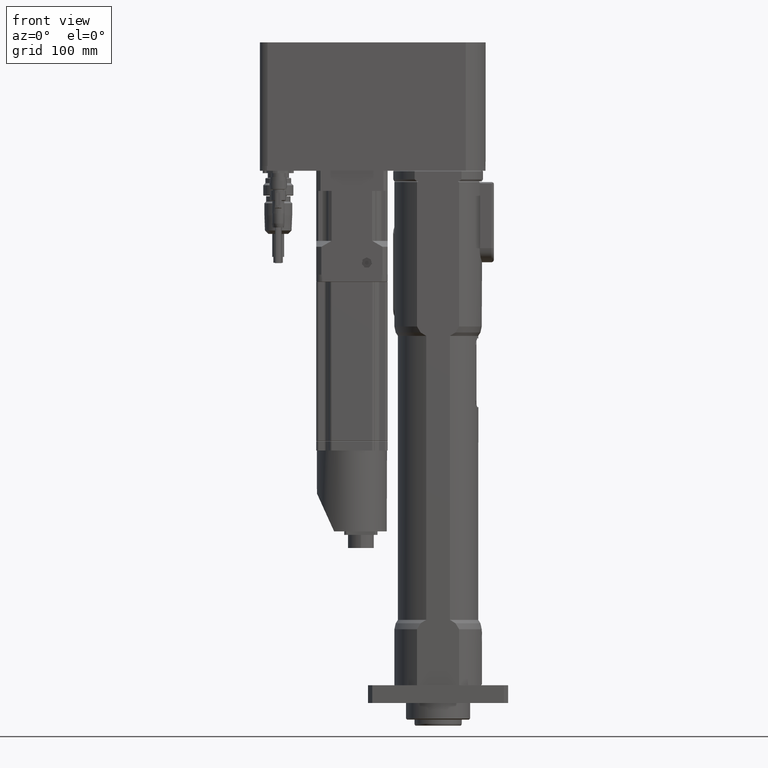
[diagram: clean part render]
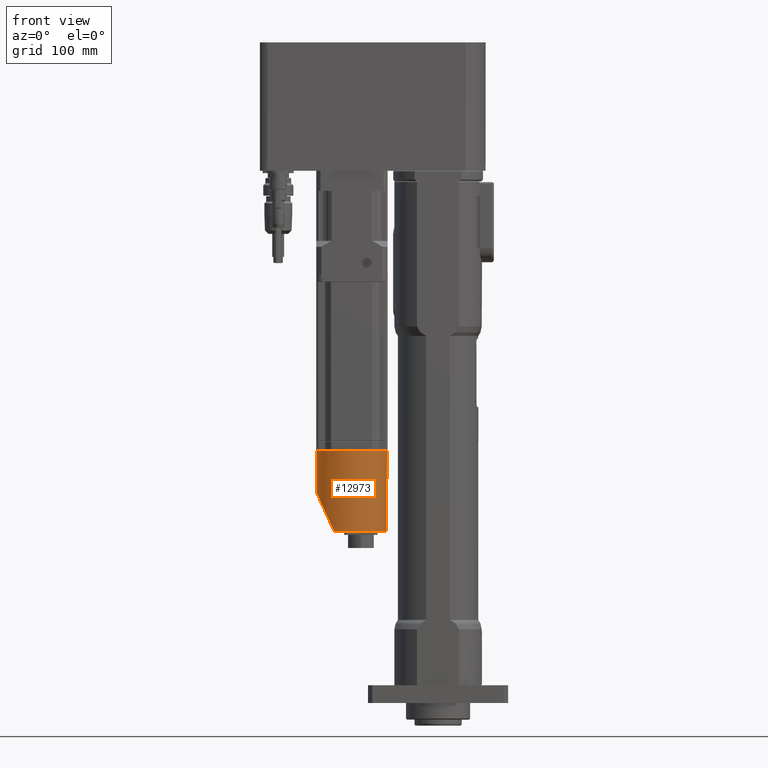
[diagram: same view with one face highlighted and labeled with its STEP entity id]
A machine part, front view. The second image highlights one B-rep face of the part: STEP entity #12973.
In plain terms, the highlighted cylindrical surface (bore or boss wall) has radius 29.5 mm, axis along (-0, -0, -1).
Its self-contained STEP definition (entity closure, byte-faithful):
#182=ELLIPSE('',#14003,71.4752333148192,29.5);
#2736=FACE_BOUND('',#3999,.T.);
#3128=FACE_OUTER_BOUND('',#3998,.T.);
#3998=EDGE_LOOP('',(#9447,#9448));
#3999=EDGE_LOOP('',(#9449,#9450,#9451,#9452,#9453,#9454,#9455,#9456));
#4816=CIRCLE('',#14005,29.5);
#4820=CIRCLE('',#14010,29.5);
#4822=CIRCLE('',#14013,29.5);
#4826=CIRCLE('',#14018,29.5);
#4832=CIRCLE('',#14025,29.5);
#4833=CIRCLE('',#14027,29.5);
#4834=CIRCLE('',#14028,29.5);
#4835=CIRCLE('',#14029,29.5);
#4836=CIRCLE('',#14030,29.5);
#5725=VERTEX_POINT('',#22938);
#5726=VERTEX_POINT('',#22939);
#5727=VERTEX_POINT('',#22945);
#5730=VERTEX_POINT('',#22950);
#5732=VERTEX_POINT('',#22955);
#5733=VERTEX_POINT('',#22957);
#5736=VERTEX_POINT('',#22964);
#5737=VERTEX_POINT('',#22966);
#5739=VERTEX_POINT('',#22972);
#5742=VERTEX_POINT('',#22977);
#7070=EDGE_CURVE('',#5725,#5726,#182,.T.);
#7072=EDGE_CURVE('',#5725,#5726,#4816,.T.);
#7076=EDGE_CURVE('',#5730,#5727,#4820,.T.);
#7078=EDGE_CURVE('',#5732,#5733,#4822,.T.);
#7082=EDGE_CURVE('',#5736,#5737,#4826,.T.);
#7088=EDGE_CURVE('',#5742,#5739,#4832,.T.);
#7089=EDGE_CURVE('',#5727,#5742,#4833,.T.);
#7090=EDGE_CURVE('',#5733,#5730,#4834,.T.);
#7091=EDGE_CURVE('',#5737,#5732,#4835,.T.);
#7092=EDGE_CURVE('',#5739,#5736,#4836,.T.);
#9447=ORIENTED_EDGE('',*,*,#7070,.T.);
#9448=ORIENTED_EDGE('',*,*,#7072,.F.);
#9449=ORIENTED_EDGE('',*,*,#7089,.F.);
#9450=ORIENTED_EDGE('',*,*,#7076,.F.);
#9451=ORIENTED_EDGE('',*,*,#7090,.F.);
#9452=ORIENTED_EDGE('',*,*,#7078,.F.);
#9453=ORIENTED_EDGE('',*,*,#7091,.F.);
#9454=ORIENTED_EDGE('',*,*,#7082,.F.);
#9455=ORIENTED_EDGE('',*,*,#7092,.F.);
#9456=ORIENTED_EDGE('',*,*,#7088,.F.);
#11743=CYLINDRICAL_SURFACE('',#14026,29.5);
#12973=ADVANCED_FACE('',(#3128,#2736),#11743,.T.);
#14003=AXIS2_PLACEMENT_3D('',#22940,#16314,#16315);
#14005=AXIS2_PLACEMENT_3D('',#22943,#16319,#16320);
#14010=AXIS2_PLACEMENT_3D('',#22952,#16329,#16330);
#14013=AXIS2_PLACEMENT_3D('',#22958,#16335,#16336);
#14018=AXIS2_PLACEMENT_3D('',#22967,#16345,#16346);
#14025=AXIS2_PLACEMENT_3D('',#22979,#16359,#16360);
#14026=AXIS2_PLACEMENT_3D('',#22980,#16361,#16362);
#14027=AXIS2_PLACEMENT_3D('',#22981,#16363,#16364);
#14028=AXIS2_PLACEMENT_3D('',#22982,#16365,#16366);
#14029=AXIS2_PLACEMENT_3D('',#22983,#16367,#16368);
#14030=AXIS2_PLACEMENT_3D('',#22984,#16369,#16370);
#16314=DIRECTION('center_axis',(0.910853246034301,3.7801971255199E-16,0.412730377109292));
#16315=DIRECTION('ref_axis',(0.412730377109292,1.7129018225012E-16,-0.910853246034301));
#16319=DIRECTION('center_axis',(-9.5486277816282E-16,-1.12787535060299E-31,
-1.));
#16320=DIRECTION('ref_axis',(-4.15017143758145E-16,1.,2.83496887813802E-31));
#16329=DIRECTION('center_axis',(9.5486277816282E-16,1.12787535060299E-31,
1.));
#16330=DIRECTION('ref_axis',(-4.15017143758145E-16,1.,2.83496887813802E-31));
#16335=DIRECTION('center_axis',(9.5486277816282E-16,1.12787535060299E-31,
1.));
#16336=DIRECTION('ref_axis',(-4.15017143758145E-16,1.,2.83496887813802E-31));
#16345=DIRECTION('center_axis',(9.5486277816282E-16,1.12787535060299E-31,
1.));
#16346=DIRECTION('ref_axis',(-4.15017143758145E-16,1.,2.83496887813802E-31));
#16359=DIRECTION('center_axis',(9.5486277816282E-16,1.12787535060299E-31,
1.));
#16360=DIRECTION('ref_axis',(-4.15017143758145E-16,1.,2.83496887813802E-31));
#16361=DIRECTION('center_axis',(-9.5486277816282E-16,-1.12787535060299E-31,
-1.));
#16362=DIRECTION('ref_axis',(-4.15017143758145E-16,1.,2.83496887813802E-31));
#16363=DIRECTION('center_axis',(9.5486277816282E-16,1.12787535060299E-31,
1.));
#16364=DIRECTION('ref_axis',(-4.15017143758145E-16,1.,2.83496887813802E-31));
#16365=DIRECTION('center_axis',(9.5486277816282E-16,1.12787535060299E-31,
1.));
#16366=DIRECTION('ref_axis',(-4.15017143758145E-16,1.,2.83496887813802E-31));
#16367=DIRECTION('center_axis',(9.5486277816282E-16,1.12787535060299E-31,
1.));
#16368=DIRECTION('ref_axis',(-4.15017143758145E-16,1.,2.83496887813802E-31));
#16369=DIRECTION('center_axis',(9.5486277816282E-16,1.12787535060299E-31,
1.));
#16370=DIRECTION('ref_axis',(-4.15017143758145E-16,1.,2.83496887813802E-31));
#22938=CARTESIAN_POINT('',(-87.4999999999998,25.4017715917611,158.500000000001));
#22939=CARTESIAN_POINT('',(-87.4999999999998,-25.401771591761,158.500000000001));
#22940=CARTESIAN_POINT('Origin',(-72.4999999999999,7.40384203082845E-14,
125.396551724139));
#22943=CARTESIAN_POINT('Origin',(-72.4999999999998,7.40384203082845E-14,
158.500000000001));
#22945=CARTESIAN_POINT('',(-91.6566690090806,-22.4337253365667,226.500000000001));
#22950=CARTESIAN_POINT('',(-94.9337253365666,-19.1566690090808,226.500000000001));
#22952=CARTESIAN_POINT('Origin',(-72.4999999999998,7.40384203082846E-14,
226.500000000001));
#22955=CARTESIAN_POINT('',(-91.6566690090807,22.4337253365669,226.500000000001));
#22957=CARTESIAN_POINT('',(-94.9337253365666,19.156669009081,226.500000000001));
#22958=CARTESIAN_POINT('Origin',(-72.4999999999998,7.40384203082846E-14,
226.500000000001));
#22964=CARTESIAN_POINT('',(-50.066274663433,19.156669009081,226.500000000001));
#22966=CARTESIAN_POINT('',(-53.3433309909189,22.4337253365669,226.500000000001));
#22967=CARTESIAN_POINT('Origin',(-72.4999999999998,7.40384203082846E-14,
226.500000000001));
#22972=CARTESIAN_POINT('',(-50.066274663433,-19.1566690090808,226.500000000001));
#22977=CARTESIAN_POINT('',(-53.3433309909189,-22.4337253365667,226.500000000001));
#22979=CARTESIAN_POINT('Origin',(-72.4999999999998,7.40384203082846E-14,
226.500000000001));
#22980=CARTESIAN_POINT('Origin',(-72.4999999999998,7.40384203082846E-14,
226.500000000001));
#22981=CARTESIAN_POINT('Origin',(-72.4999999999998,7.40384203082846E-14,
226.500000000001));
#22982=CARTESIAN_POINT('Origin',(-72.4999999999998,7.40384203082846E-14,
226.500000000001));
#22983=CARTESIAN_POINT('Origin',(-72.4999999999998,7.40384203082846E-14,
226.500000000001));
#22984=CARTESIAN_POINT('Origin',(-72.4999999999998,7.40384203082846E-14,
226.500000000001));